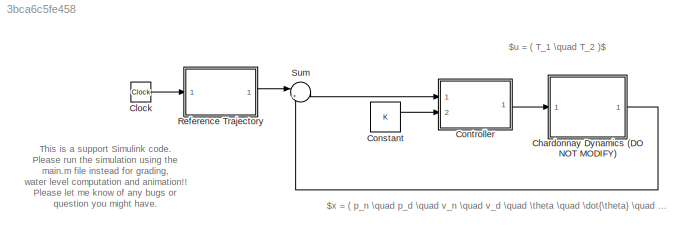
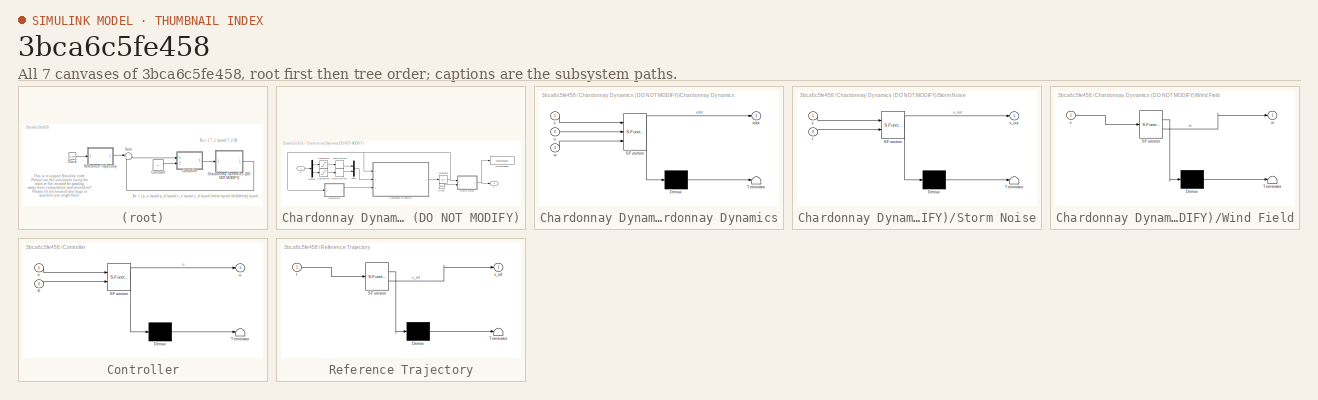
[diagram: thumbnail index - all 7 canvases of the model, root first then tree order]
MODEL slx_3bca6c5fe458
KIND model
CONFIG AbsTol = auto
CONFIG EnableMultiTasking = off
CONFIG FixedStep = auto
CONFIG MaxStep = auto
CONFIG MinStep = auto
CONFIG RelTol = 1e-3
CONFIG SampleTimeConstraint = Unconstrained
CONFIG Solver = VariableStepAuto
CONFIG SolverName = VariableStepAuto
CONFIG StartTime = 0.0
CONFIG StopTime = 30
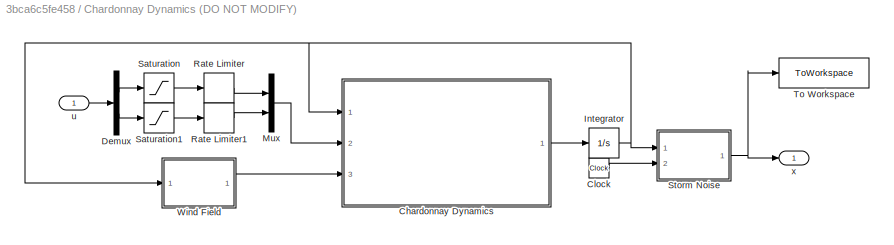
BLOCK [SubSystem] Chardonnay Dynamics (DO NOT MODIFY)
  Permissions = ReadOnly
  Ports = [1, 1]
  RequestExecContextInheritance = off
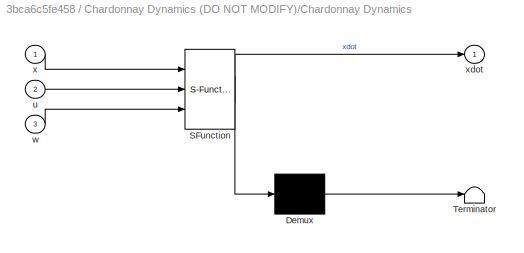
BLOCK [SubSystem] Chardonnay Dynamics (DO NOT MODIFY)/Chardonnay Dynamics
  ErrorFcn = Stateflow.Translate.translate
  PermitHierarchicalResolution = ExplicitOnly
  Ports = [3, 1]
  RequestExecContextInheritance = off
  SFBlockType = MATLAB Function
  TreatAsAtomicUnit = on
BLOCK [Demux] Chardonnay Dynamics (DO NOT MODIFY)/Chardonnay Dynamics/ Demux 
  Outputs = 1
  Ports = [1, 1]
BLOCK [S-Function] Chardonnay Dynamics (DO NOT MODIFY)/Chardonnay Dynamics/ SFunction 
  EnableBusSupport = on
  FunctionName = sf_sfun
  PortCounts = [3 2]
  Ports = [3, 2]
  SFcnIsStateOwnerBlock = off
  SFunctionDeploymentMode = off
  Tag = Stateflow S-Function chardonnay_simulinkR2019a 2
BLOCK [Terminator] Chardonnay Dynamics (DO NOT MODIFY)/Chardonnay Dynamics/ Terminator 
BLOCK [Inport] Chardonnay Dynamics (DO NOT MODIFY)/Chardonnay Dynamics/u
  Port = 2
BLOCK [Inport] Chardonnay Dynamics (DO NOT MODIFY)/Chardonnay Dynamics/w
  Port = 3
BLOCK [Inport] Chardonnay Dynamics (DO NOT MODIFY)/Chardonnay Dynamics/x
BLOCK [Outport] Chardonnay Dynamics (DO NOT MODIFY)/Chardonnay Dynamics/xdot
BLOCK [Clock] Chardonnay Dynamics (DO NOT MODIFY)/Clock
BLOCK [Demux] Chardonnay Dynamics (DO NOT MODIFY)/Demux
  Outputs = 2
  Ports = [1, 2]
BLOCK [Integrator] Chardonnay Dynamics (DO NOT MODIFY)/Integrator
  InitialCondition = zeros(8,1)
  Ports = [1, 1]
BLOCK [Mux] Chardonnay Dynamics (DO NOT MODIFY)/Mux
  DisplayOption = bar
  Inputs = 2
  Ports = [2, 1]
BLOCK [RateLimiter] Chardonnay Dynamics (DO NOT MODIFY)/Rate Limiter
  FallingSlewLimit = -100
  RisingSlewLimit = 100
  SampleTimeMode = inherited
BLOCK [RateLimiter] Chardonnay Dynamics (DO NOT MODIFY)/Rate Limiter1
  FallingSlewLimit = -100
  RisingSlewLimit = 100
  SampleTimeMode = inherited
BLOCK [Saturate] Chardonnay Dynamics (DO NOT MODIFY)/Saturation
  LowerLimit = 0
  UpperLimit = 30
BLOCK [Saturate] Chardonnay Dynamics (DO NOT MODIFY)/Saturation1
  LowerLimit = 0
  UpperLimit = 30
BLOCK [SubSystem] Chardonnay Dynamics (DO NOT MODIFY)/Storm Noise
  ErrorFcn = Stateflow.Translate.translate
  PermitHierarchicalResolution = ExplicitOnly
  Ports = [2, 1]
  RequestExecContextInheritance = off
  SFBlockType = MATLAB Function
  TreatAsAtomicUnit = on
BLOCK [Demux] Chardonnay Dynamics (DO NOT MODIFY)/Storm Noise/ Demux 
  Outputs = 1
  Ports = [1, 1]
BLOCK [S-Function] Chardonnay Dynamics (DO NOT MODIFY)/Storm Noise/ SFunction 
  EnableBusSupport = on
  FunctionName = sf_sfun
  PortCounts = [2 2]
  Ports = [2, 2]
  SFcnIsStateOwnerBlock = off
  SFunctionDeploymentMode = off
  Tag = Stateflow S-Function chardonnay_simulinkR2019a 4
BLOCK [Terminator] Chardonnay Dynamics (DO NOT MODIFY)/Storm Noise/ Terminator 
BLOCK [Inport] Chardonnay Dynamics (DO NOT MODIFY)/Storm Noise/t
  Port = 2
BLOCK [Inport] Chardonnay Dynamics (DO NOT MODIFY)/Storm Noise/x
BLOCK [Outport] Chardonnay Dynamics (DO NOT MODIFY)/Storm Noise/x_out
BLOCK [ToWorkspace] Chardonnay Dynamics (DO NOT MODIFY)/To Workspace
  FixptAsFi = on
  MaxDataPoints = inf
  Ports = [1]
  SampleTime = 1/30
  SaveFormat = Timeseries
  VariableName = simout
BLOCK [SubSystem] Chardonnay Dynamics (DO NOT MODIFY)/Wind Field
  ErrorFcn = Stateflow.Translate.translate
  PermitHierarchicalResolution = ExplicitOnly
  Ports = [1, 1]
  RequestExecContextInheritance = off
  SFBlockType = MATLAB Function
  TreatAsAtomicUnit = on
BLOCK [Demux] Chardonnay Dynamics (DO NOT MODIFY)/Wind Field/ Demux 
  Outputs = 1
  Ports = [1, 1]
BLOCK [S-Function] Chardonnay Dynamics (DO NOT MODIFY)/Wind Field/ SFunction 
  EnableBusSupport = on
  FunctionName = sf_sfun
  PortCounts = [1 2]
  Ports = [1, 2]
  SFcnIsStateOwnerBlock = off
  SFunctionDeploymentMode = off
  Tag = Stateflow S-Function chardonnay_simulinkR2019a 1
BLOCK [Terminator] Chardonnay Dynamics (DO NOT MODIFY)/Wind Field/ Terminator 
BLOCK [Outport] Chardonnay Dynamics (DO NOT MODIFY)/Wind Field/w
BLOCK [Inport] Chardonnay Dynamics (DO NOT MODIFY)/Wind Field/x
BLOCK [Inport] Chardonnay Dynamics (DO NOT MODIFY)/u
BLOCK [Outport] Chardonnay Dynamics (DO NOT MODIFY)/x
BLOCK [Clock] Clock
BLOCK [Constant] Constant
  Value = K
BLOCK [SubSystem] Controller
  ErrorFcn = Stateflow.Translate.translate
  PermitHierarchicalResolution = ExplicitOnly
  Ports = [2, 1]
  RequestExecContextInheritance = off
  SFBlockType = MATLAB Function
  TreatAsAtomicUnit = on
BLOCK [Demux] Controller/ Demux 
  Outputs = 1
  Ports = [1, 1]
BLOCK [S-Function] Controller/ SFunction 
  EnableBusSupport = on
  FunctionName = sf_sfun
  PortCounts = [2 2]
  Ports = [2, 2]
  SFcnIsStateOwnerBlock = off
  SFunctionDeploymentMode = off
  Tag = Stateflow S-Function chardonnay_simulinkR2019a 6
BLOCK [Terminator] Controller/ Terminator 
BLOCK [Inport] Controller/K
  Port = 2
BLOCK [Inport] Controller/e
BLOCK [Outport] Controller/u
BLOCK [SubSystem] Reference Trajectory
  ErrorFcn = Stateflow.Translate.translate
  PermitHierarchicalResolution = ExplicitOnly
  Ports = [1, 1]
  RequestExecContextInheritance = off
  SFBlockType = MATLAB Function
  TreatAsAtomicUnit = on
BLOCK [Demux] Reference Trajectory/ Demux 
  Outputs = 1
  Ports = [1, 1]
BLOCK [S-Function] Reference Trajectory/ SFunction 
  EnableBusSupport = on
  FunctionName = sf_sfun
  PortCounts = [1 2]
  Ports = [1, 2]
  SFcnIsStateOwnerBlock = off
  SFunctionDeploymentMode = off
  Tag = Stateflow S-Function chardonnay_simulinkR2019a 5
BLOCK [Terminator] Reference Trajectory/ Terminator 
BLOCK [Inport] Reference Trajectory/t
BLOCK [Outport] Reference Trajectory/x_ref
BLOCK [Sum] Sum
  Inputs = |+-
  Ports = [2, 1]
ANNOTATION (root): This is a support Simulink code. Please run the simulation using the main.m file instead for grading, water level computation and animation!! Please let me know of any bugs or question you might have. Have fun! - Léo
ANNOTATION (root): $u = ( T_1 \quad T_2 )$
ANNOTATION (root): $x = ( p_n \quad p_d \quad v_n \quad v_d \quad \theta \quad \dot{\theta} \quad \gamma \quad \dot{\gamma} )$
LINE Chardonnay Dynamics (DO NOT MODIFY)/Chardonnay Dynamics:1 -> Chardonnay Dynamics (DO NOT MODIFY)/Integrator:1
LINE Chardonnay Dynamics (DO NOT MODIFY)/Clock:1 -> Chardonnay Dynamics (DO NOT MODIFY)/Storm Noise:2
LINE Chardonnay Dynamics (DO NOT MODIFY)/Demux:1 -> Chardonnay Dynamics (DO NOT MODIFY)/Saturation:1
LINE Chardonnay Dynamics (DO NOT MODIFY)/Demux:2 -> Chardonnay Dynamics (DO NOT MODIFY)/Saturation1:1
NET Chardonnay Dynamics (DO NOT MODIFY)/Integrator:1 -> Chardonnay Dynamics (DO NOT MODIFY)/Chardonnay Dynamics:1, Chardonnay Dynamics (DO NOT MODIFY)/Storm Noise:1, Chardonnay Dynamics (DO NOT MODIFY)/Wind Field:1
LINE Chardonnay Dynamics (DO NOT MODIFY)/Mux:1 -> Chardonnay Dynamics (DO NOT MODIFY)/Chardonnay Dynamics:2
LINE Chardonnay Dynamics (DO NOT MODIFY)/Rate Limiter1:1 -> Chardonnay Dynamics (DO NOT MODIFY)/Mux:2
LINE Chardonnay Dynamics (DO NOT MODIFY)/Rate Limiter:1 -> Chardonnay Dynamics (DO NOT MODIFY)/Mux:1
LINE Chardonnay Dynamics (DO NOT MODIFY)/Saturation1:1 -> Chardonnay Dynamics (DO NOT MODIFY)/Rate Limiter1:1
LINE Chardonnay Dynamics (DO NOT MODIFY)/Saturation:1 -> Chardonnay Dynamics (DO NOT MODIFY)/Rate Limiter:1
NET Chardonnay Dynamics (DO NOT MODIFY)/Storm Noise:1 -> Chardonnay Dynamics (DO NOT MODIFY)/To Workspace:1, Chardonnay Dynamics (DO NOT MODIFY)/x:1
LINE Chardonnay Dynamics (DO NOT MODIFY)/Wind Field:1 -> Chardonnay Dynamics (DO NOT MODIFY)/Chardonnay Dynamics:3
LINE Chardonnay Dynamics (DO NOT MODIFY)/u:1 -> Chardonnay Dynamics (DO NOT MODIFY)/Demux:1
LINE Chardonnay Dynamics (DO NOT MODIFY):1 -> Sum:2
LINE Clock:1 -> Reference Trajectory:1
LINE Constant:1 -> Controller:2
LINE Controller:1 -> Chardonnay Dynamics (DO NOT MODIFY):1
LINE Reference Trajectory:1 -> Sum:1
LINE Sum:1 -> Controller:1
note: NET lines group one-source signal fan-out (src -> all destinations, sorted); 1:1 wires keep LINE
CHART Chardonnay Dynamics 
(DO NOT MODIFY)/Wind Field states=1 transitions=1
  STATE_LABEL 'eML_blk_kernel()'
  STATE_LABEL 'SCRIPT:\nfunction w = wind_field(x)\n% x = (pn, pd, vn, vd, the, thed, gam, gamd)\n\nWIND_SPEED = 2;\n\npn = x(1);\n\nif ( abs(pn-30)<5 )\n    w = [0;WIND_SPEED];\nelse\n    w = zeros(2,1);\nend\n'
CHART Chardonnay Dynamics 
(DO NOT MODIFY)/Chardonnay Dynamics states=1 transitions=1
  STATE_LABEL 'eML_blk_kernel()'
  STATE_LABEL 'SCRIPT:\n%% definition of equations of motion in nonlinear form\n% this goes according to BE1, in the TA notes\n\nfunction xdot = chardonnay_dynamics_s(x,u,w)\n% x = (pn, pd, vn, vd, the, thed, gam, gamd)\n% u = (T1, T2)\n% w = (w1, w2)\n\nchardonnay.m_d = 1;\nchardonnay.m_c = 1;\nchardonnay.l = 1;\nchardonnay.l_d = 1;\nchardonnay.J = 0.1;\nchardonnay.C_D = 0.1;\nchardonnay.g = 10;\n\nm_d = chardonnay.m_d;\nm_c = c...<+870ch>'
CHART Chardonnay Dynamics 
(DO NOT MODIFY)/Storm Noise states=1 transitions=1
  STATE_LABEL 'eML_blk_kernel()'
  STATE_LABEL 'SCRIPT:\nfunction x_out = storm(x,t)\n% x = (pn, pd, vn, vd, the, thed, gam, gamd)\n\nPOS_NOISE = 0.1;\nVEL_NOISE = 0.1;\nANG_NOISE = 3*pi/180;\nANG_VEL_NOISE = 0;\n\nNOISE_FREQ_HZ = 1000;\n\npn = x(1);\n\nif ( abs(pn-10)<5 )\n    x_out = x + [POS_NOISE;POS_NOISE;VEL_NOISE;VEL_NOISE;ANG_NOISE;ANG_VEL_NOISE;ANG_NOISE;ANG_VEL_NOISE]*sin(2*pi*NOISE_FREQ_HZ*t);\nelse\n    x_out = x;\nend\n'
CHART Reference Trajectory states=1 transitions=1
  STATE_LABEL 'eML_blk_kernel()'
  STATE_LABEL 'SCRIPT:\nfunction x_ref = fcn(t)\n% x = (pn, pd, vn, vd, the, thed, gam, gamd)\n\nx_ref = zeros(8,1);\n\nTIME_CTE = 10;\n\nif (t<TIME_CTE)\n    x_ref(1) = t/TIME_CTE*20;\n    x_ref(2) = 10*sin( x_ref(1)/20*2*pi );\n    x_ref(3) = 1/TIME_CTE*20;\n    x_ref(4) = 10/20*2*pi*cos( x_ref(1)/20*2*pi );\nelseif (t<2*TIME_CTE)\n    x_ref(1) = 20+(t-TIME_CTE)/TIME_CTE*20;\n    x_ref(3) = 1/TIME_CTE*20;\nelse\n    x_ref(1) =...<+28ch>'
CHART Controller states=1 transitions=1
  STATE_LABEL 'eML_blk_kernel()'
  STATE_LABEL 'SCRIPT:\nfunction u = fcn(e,K)\nu = [10;10] + K*e;\n'
